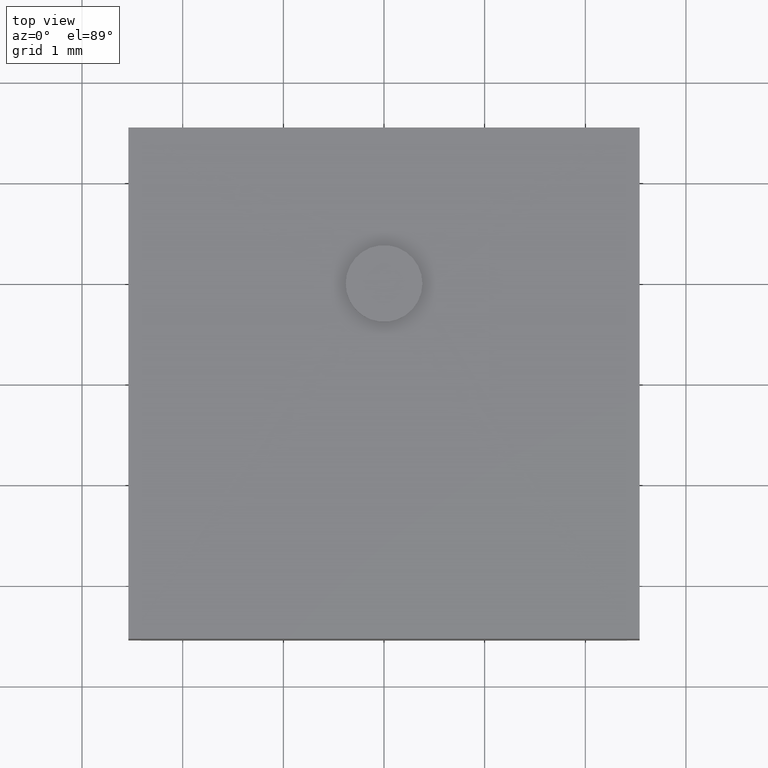
[diagram: clean part render]
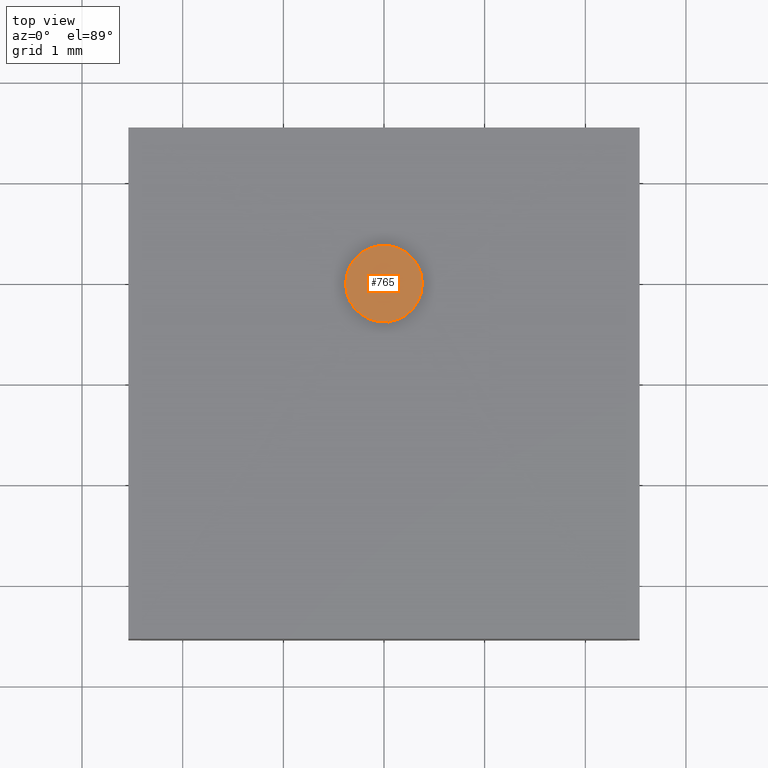
[diagram: same view with one face highlighted and labeled with its STEP entity id]
A machine part, top view. The second image highlights one B-rep face of the part: STEP entity #765.
In plain terms, the highlighted planar face has unit normal (0, 0, 1).
Its self-contained STEP definition (entity closure, byte-faithful):
#7 = EDGE_CURVE ( 'NONE', #69, #542, #310, .T. ) ;
#69 = VERTEX_POINT ( 'NONE', #331 ) ;
#118 = DIRECTION ( 'NONE',  ( 0.000000000000000000, 0.000000000000000000, 1.000000000000000000 ) ) ;
#179 = CIRCLE ( 'NONE', #357, 0.01499999999999999944 ) ;
#191 = CARTESIAN_POINT ( 'NONE',  ( 2.842170943040400743E-13, 0.03889311473933076968, 0.04300000000000000350 ) ) ;
#235 = DIRECTION ( 'NONE',  ( 1.000000000000000000, 0.000000000000000000, 0.000000000000000000 ) ) ;
#309 = DIRECTION ( 'NONE',  ( 1.000000000000000000, 0.000000000000000000, 0.000000000000000000 ) ) ;
#310 = CIRCLE ( 'NONE', #596, 0.01499999999999999944 ) ;
#315 = EDGE_LOOP ( 'NONE', ( #615, #529 ) ) ;
#331 = CARTESIAN_POINT ( 'NONE',  ( 0.01500000000028421654, 0.03889311473933076968, 0.04300000000000000350 ) ) ;
#357 = AXIS2_PLACEMENT_3D ( 'NONE', #191, #366, #309 ) ;
#366 = DIRECTION ( 'NONE',  ( 0.000000000000000000, 0.000000000000000000, 1.000000000000000000 ) ) ;
#379 = DIRECTION ( 'NONE',  ( 1.000000000000000000, 0.000000000000000000, -0.000000000000000000 ) ) ;
#429 = PLANE ( 'NONE',  #677 ) ;
#446 = EDGE_CURVE ( 'NONE', #542, #69, #179, .T. ) ;
#529 = ORIENTED_EDGE ( 'NONE', *, *, #7, .T. ) ;
#542 = VERTEX_POINT ( 'NONE', #768 ) ;
#551 = FACE_OUTER_BOUND ( 'NONE', #315, .T. ) ;
#596 = AXIS2_PLACEMENT_3D ( 'NONE', #782, #118, #235 ) ;
#615 = ORIENTED_EDGE ( 'NONE', *, *, #446, .T. ) ;
#677 = AXIS2_PLACEMENT_3D ( 'NONE', #684, #734, #379 ) ;
#684 = CARTESIAN_POINT ( 'NONE',  ( 2.842170943040400743E-13, 0.03889311473933076968, 0.04300000000000000350 ) ) ;
#734 = DIRECTION ( 'NONE',  ( 0.000000000000000000, 0.000000000000000000, 1.000000000000000000 ) ) ;
#765 = ADVANCED_FACE ( 'NONE', ( #551 ), #429, .T. ) ;
#768 = CARTESIAN_POINT ( 'NONE',  ( -0.01499999999971578409, 0.03889311473933076968, 0.04300000000000000350 ) ) ;
#782 = CARTESIAN_POINT ( 'NONE',  ( 2.842170943040400743E-13, 0.03889311473933076968, 0.04300000000000000350 ) ) ;